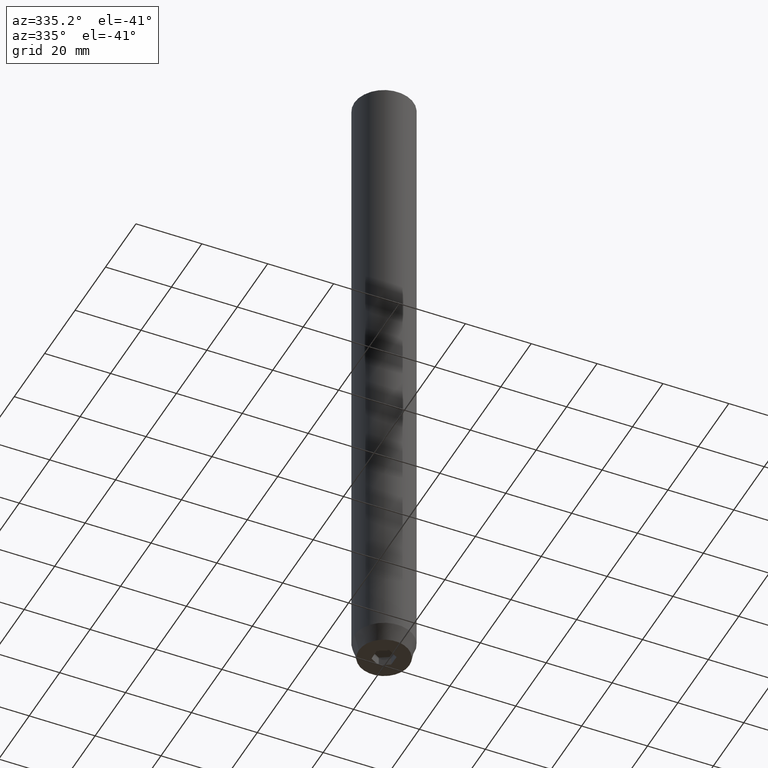
[diagram: clean part render]
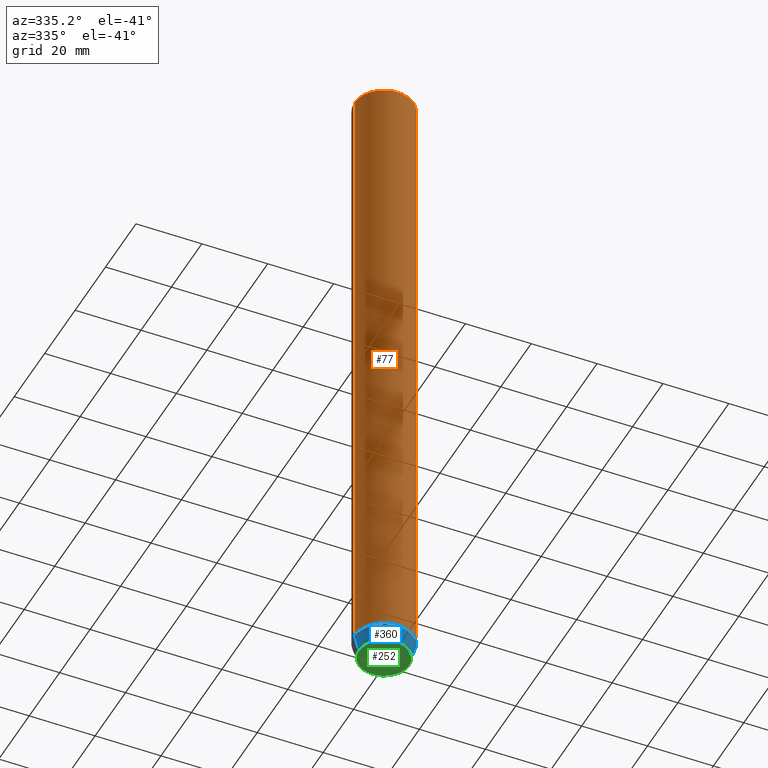
[diagram: same view with three faces highlighted in distinct colors, each labeled with its STEP entity id]
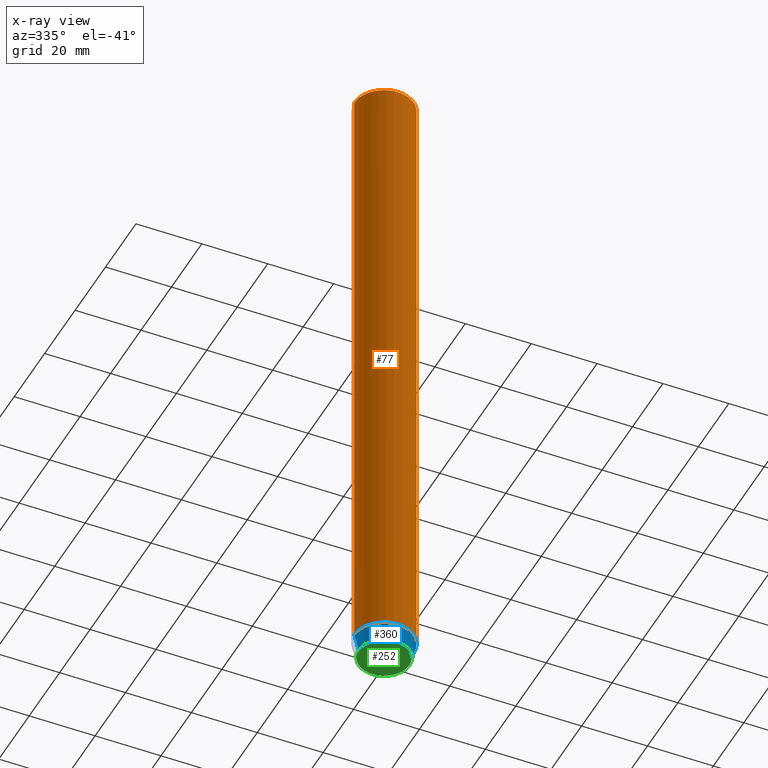
[diagram: x-ray of the same camera — body ghosted, the three highlighted faces saturated]
A machine part, auxiliary view with three faces highlighted in distinct colors.
The next image is the same camera in x-ray (body ghosted, the three faces saturated) — at least one of them is partly hidden behind the body in this view.
Their STEP definitions:

[orange] entity #77 — the highlighted cylindrical surface (edge-blend (fillet) strip) has radius 9 mm, axis along (-0, -0, 1).
#44 = LINE ( 'NONE', #364, #105 ) ;
#77 = ADVANCED_FACE ( 'NONE', ( #326 ), #200, .T. ) ;
#105 = VECTOR ( 'NONE', #548, 1000.000000000000000 ) ;
#118 = AXIS2_PLACEMENT_3D ( 'NONE', #359, #540, #405 ) ;
#123 = DIRECTION ( 'NONE',  ( 1.000000000000000000, 0.000000000000000000, 0.000000000000000000 ) ) ;
#142 = LINE ( 'NONE', #464, #484 ) ;
#143 = ORIENTED_EDGE ( 'NONE', *, *, #344, .T. ) ;
#160 = CARTESIAN_POINT ( 'NONE',  ( -9.000000000000000000, 1.102182119232617714E-15, -195.0000000000000000 ) ) ;
#184 = ORIENTED_EDGE ( 'NONE', *, *, #377, .T. ) ;
#200 = CYLINDRICAL_SURFACE ( 'NONE', #584, 9.000000000000000000 ) ;
#236 = VERTEX_POINT ( 'NONE', #160 ) ;
#239 = DIRECTION ( 'NONE',  ( -0.000000000000000000, -0.000000000000000000, 1.000000000000000000 ) ) ;
#250 = ORIENTED_EDGE ( 'NONE', *, *, #408, .T. ) ;
#272 = CARTESIAN_POINT ( 'NONE',  ( -9.000000000000000000, 1.102182119232617714E-15, -0.4999999999999952260 ) ) ;
#318 = ORIENTED_EDGE ( 'NONE', *, *, #533, .F. ) ;
#326 = FACE_OUTER_BOUND ( 'NONE', #531, .T. ) ;
#344 = EDGE_CURVE ( 'NONE', #236, #575, #542, .T. ) ;
#359 = CARTESIAN_POINT ( 'NONE',  ( 0.000000000000000000, 0.000000000000000000, -0.4999999999999952260 ) ) ;
#364 = CARTESIAN_POINT ( 'NONE',  ( 9.000000000000000000, 0.000000000000000000, 0.000000000000000000 ) ) ;
#374 = CARTESIAN_POINT ( 'NONE',  ( 9.000000000000000000, 0.000000000000000000, -195.0000000000000000 ) ) ;
#377 = EDGE_CURVE ( 'NONE', #384, #443, #438, .T. ) ;
#384 = VERTEX_POINT ( 'NONE', #451 ) ;
#387 = DIRECTION ( 'NONE',  ( -0.000000000000000000, -0.000000000000000000, 1.000000000000000000 ) ) ;
#405 = DIRECTION ( 'NONE',  ( 1.000000000000000000, 0.000000000000000000, 0.000000000000000000 ) ) ;
#408 = EDGE_CURVE ( 'NONE', #575, #384, #44, .T. ) ;
#420 = DIRECTION ( 'NONE',  ( 1.000000000000000000, 0.000000000000000000, 0.000000000000000000 ) ) ;
#438 = CIRCLE ( 'NONE', #118, 9.000000000000000000 ) ;
#443 = VERTEX_POINT ( 'NONE', #272 ) ;
#451 = CARTESIAN_POINT ( 'NONE',  ( 9.000000000000000000, 0.000000000000000000, -0.4999999999999952260 ) ) ;
#453 = DIRECTION ( 'NONE',  ( -0.000000000000000000, -0.000000000000000000, 1.000000000000000000 ) ) ;
#464 = CARTESIAN_POINT ( 'NONE',  ( -9.000000000000000000, 1.102182119232617714E-15, 0.000000000000000000 ) ) ;
#484 = VECTOR ( 'NONE', #453, 1000.000000000000000 ) ;
#512 = CARTESIAN_POINT ( 'NONE',  ( 0.000000000000000000, 0.000000000000000000, 0.000000000000000000 ) ) ;
#529 = CARTESIAN_POINT ( 'NONE',  ( 0.000000000000000000, 0.000000000000000000, -195.0000000000000000 ) ) ;
#531 = EDGE_LOOP ( 'NONE', ( #318, #143, #250, #184 ) ) ;
#533 = EDGE_CURVE ( 'NONE', #236, #443, #142, .T. ) ;
#540 = DIRECTION ( 'NONE',  ( 0.000000000000000000, 0.000000000000000000, -1.000000000000000000 ) ) ;
#542 = CIRCLE ( 'NONE', #551, 9.000000000000000000 ) ;
#548 = DIRECTION ( 'NONE',  ( -0.000000000000000000, -0.000000000000000000, 1.000000000000000000 ) ) ;
#551 = AXIS2_PLACEMENT_3D ( 'NONE', #529, #387, #123 ) ;
#575 = VERTEX_POINT ( 'NONE', #374 ) ;
#584 = AXIS2_PLACEMENT_3D ( 'NONE', #512, #239, #420 ) ;

[blue] entity #360 — the highlighted conical surface has half-angle 15 deg.
#7 = EDGE_CURVE ( 'NONE', #191, #236, #287, .T. ) ;
#8 = DIRECTION ( 'NONE',  ( 1.000000000000000000, 0.000000000000000000, 0.000000000000000000 ) ) ;
#19 = ORIENTED_EDGE ( 'NONE', *, *, #7, .F. ) ;
#30 = VERTEX_POINT ( 'NONE', #158 ) ;
#100 = DIRECTION ( 'NONE',  ( -0.000000000000000000, -0.000000000000000000, 1.000000000000000000 ) ) ;
#112 = ORIENTED_EDGE ( 'NONE', *, *, #481, .T. ) ;
#123 = DIRECTION ( 'NONE',  ( 1.000000000000000000, 0.000000000000000000, 0.000000000000000000 ) ) ;
#158 = CARTESIAN_POINT ( 'NONE',  ( 7.660254037844380193, 0.000000000000000000, -200.0000000000000000 ) ) ;
#160 = CARTESIAN_POINT ( 'NONE',  ( -9.000000000000000000, 1.102182119232617714E-15, -195.0000000000000000 ) ) ;
#191 = VERTEX_POINT ( 'NONE', #573 ) ;
#215 = AXIS2_PLACEMENT_3D ( 'NONE', #404, #496, #8 ) ;
#220 = ORIENTED_EDGE ( 'NONE', *, *, #344, .F. ) ;
#236 = VERTEX_POINT ( 'NONE', #160 ) ;
#237 = CARTESIAN_POINT ( 'NONE',  ( 0.000000000000000000, 0.000000000000000000, -200.0000000000000000 ) ) ;
#287 = LINE ( 'NONE', #566, #388 ) ;
#309 = FACE_OUTER_BOUND ( 'NONE', #511, .T. ) ;
#316 = LINE ( 'NONE', #495, #390 ) ;
#344 = EDGE_CURVE ( 'NONE', #236, #575, #542, .T. ) ;
#360 = ADVANCED_FACE ( 'NONE', ( #309 ), #474, .T. ) ;
#374 = CARTESIAN_POINT ( 'NONE',  ( 9.000000000000000000, 0.000000000000000000, -195.0000000000000000 ) ) ;
#387 = DIRECTION ( 'NONE',  ( -0.000000000000000000, -0.000000000000000000, 1.000000000000000000 ) ) ;
#388 = VECTOR ( 'NONE', #521, 1000.000000000000114 ) ;
#390 = VECTOR ( 'NONE', #500, 1000.000000000000114 ) ;
#404 = CARTESIAN_POINT ( 'NONE',  ( 0.000000000000000000, 0.000000000000000000, -195.0000000000000000 ) ) ;
#426 = CIRCLE ( 'NONE', #459, 7.660254037844380193 ) ;
#459 = AXIS2_PLACEMENT_3D ( 'NONE', #237, #100, #508 ) ;
#474 = CONICAL_SURFACE ( 'NONE', #215, 9.000000000000000000, 0.2617993877991502405 ) ;
#481 = EDGE_CURVE ( 'NONE', #30, #575, #316, .T. ) ;
#495 = CARTESIAN_POINT ( 'NONE',  ( 9.000000000000000000, 0.000000000000000000, -195.0000000000000000 ) ) ;
#496 = DIRECTION ( 'NONE',  ( -0.000000000000000000, -0.000000000000000000, 1.000000000000000000 ) ) ;
#500 = DIRECTION ( 'NONE',  ( 0.2588190451025214611, 0.000000000000000000, 0.9659258262890679791 ) ) ;
#508 = DIRECTION ( 'NONE',  ( 1.000000000000000000, 0.000000000000000000, 0.000000000000000000 ) ) ;
#511 = EDGE_LOOP ( 'NONE', ( #19, #557, #112, #220 ) ) ;
#521 = DIRECTION ( 'NONE',  ( -0.2588190451025214611, 3.169619151431774186E-17, 0.9659258262890679791 ) ) ;
#529 = CARTESIAN_POINT ( 'NONE',  ( 0.000000000000000000, 0.000000000000000000, -195.0000000000000000 ) ) ;
#530 = EDGE_CURVE ( 'NONE', #191, #30, #426, .T. ) ;
#542 = CIRCLE ( 'NONE', #551, 9.000000000000000000 ) ;
#551 = AXIS2_PLACEMENT_3D ( 'NONE', #529, #387, #123 ) ;
#557 = ORIENTED_EDGE ( 'NONE', *, *, #530, .T. ) ;
#566 = CARTESIAN_POINT ( 'NONE',  ( -9.000000000000000000, 1.102182119232617714E-15, -195.0000000000000000 ) ) ;
#573 = CARTESIAN_POINT ( 'NONE',  ( -7.660254037844380193, 1.020146339021394272E-15, -200.0000000000000000 ) ) ;
#575 = VERTEX_POINT ( 'NONE', #374 ) ;

[green] entity #252 — the highlighted planar face has unit normal (0, 0, -1).
#12 = AXIS2_PLACEMENT_3D ( 'NONE', #21, #372, #68 ) ;
#14 = DIRECTION ( 'NONE',  ( 0.8660254037844385966, -0.5000000000000001110, 0.000000000000000000 ) ) ;
#16 = CARTESIAN_POINT ( 'NONE',  ( 1.500000000000000222, 2.598076211353315568, -200.0000000000000000 ) ) ;
#21 = CARTESIAN_POINT ( 'NONE',  ( 0.000000000000000000, 0.000000000000000000, -200.0000000000000000 ) ) ;
#27 = EDGE_CURVE ( 'NONE', #505, #65, #290, .T. ) ;
#30 = VERTEX_POINT ( 'NONE', #158 ) ;
#35 = LINE ( 'NONE', #353, #483 ) ;
#59 = DIRECTION ( 'NONE',  ( 0.000000000000000000, -1.000000000000000000, 0.000000000000000000 ) ) ;
#65 = VERTEX_POINT ( 'NONE', #383 ) ;
#68 = DIRECTION ( 'NONE',  ( 1.000000000000000000, 0.000000000000000000, 0.000000000000000000 ) ) ;
#71 = VECTOR ( 'NONE', #249, 1000.000000000000000 ) ;
#73 = EDGE_LOOP ( 'NONE', ( #226, #312, #361, #322, #91, #76 ) ) ;
#75 = CARTESIAN_POINT ( 'NONE',  ( -1.499999999999999556, 2.598076211353316012, -200.0000000000000000 ) ) ;
#76 = ORIENTED_EDGE ( 'NONE', *, *, #586, .F. ) ;
#85 = FACE_OUTER_BOUND ( 'NONE', #561, .T. ) ;
#86 = EDGE_CURVE ( 'NONE', #30, #191, #131, .T. ) ;
#91 = ORIENTED_EDGE ( 'NONE', *, *, #27, .F. ) ;
#100 = DIRECTION ( 'NONE',  ( -0.000000000000000000, -0.000000000000000000, 1.000000000000000000 ) ) ;
#111 = DIRECTION ( 'NONE',  ( -2.503857664561932376E-16, 1.000000000000000000, 0.000000000000000000 ) ) ;
#131 = CIRCLE ( 'NONE', #12, 7.660254037844380193 ) ;
#140 = LINE ( 'NONE', #16, #178 ) ;
#158 = CARTESIAN_POINT ( 'NONE',  ( 7.660254037844380193, 0.000000000000000000, -200.0000000000000000 ) ) ;
#165 = LINE ( 'NONE', #299, #71 ) ;
#175 = CARTESIAN_POINT ( 'NONE',  ( -3.000000000000000000, -1.732050807568877859, -200.0000000000000000 ) ) ;
#178 = VECTOR ( 'NONE', #14, 1000.000000000000000 ) ;
#191 = VERTEX_POINT ( 'NONE', #573 ) ;
#205 = EDGE_CURVE ( 'NONE', #65, #570, #165, .T. ) ;
#207 = ORIENTED_EDGE ( 'NONE', *, *, #86, .F. ) ;
#216 = FACE_BOUND ( 'NONE', #73, .T. ) ;
#226 = ORIENTED_EDGE ( 'NONE', *, *, #306, .F. ) ;
#237 = CARTESIAN_POINT ( 'NONE',  ( 0.000000000000000000, 0.000000000000000000, -200.0000000000000000 ) ) ;
#249 = DIRECTION ( 'NONE',  ( -0.8660254037844385966, -0.5000000000000001110, 0.000000000000000000 ) ) ;
#251 = DIRECTION ( 'NONE',  ( -1.000000000000000000, 0.000000000000000000, -0.000000000000000000 ) ) ;
#252 = ADVANCED_FACE ( 'NONE', ( #216, #85 ), #258, .T. ) ;
#258 = PLANE ( 'NONE',  #458 ) ;
#271 = VECTOR ( 'NONE', #111, 1000.000000000000000 ) ;
#290 = LINE ( 'NONE', #475, #291 ) ;
#291 = VECTOR ( 'NONE', #59, 1000.000000000000000 ) ;
#299 = CARTESIAN_POINT ( 'NONE',  ( 1.500000000000000222, -2.598076211353315568, -200.0000000000000000 ) ) ;
#306 = EDGE_CURVE ( 'NONE', #375, #513, #436, .T. ) ;
#312 = ORIENTED_EDGE ( 'NONE', *, *, #567, .F. ) ;
#322 = ORIENTED_EDGE ( 'NONE', *, *, #205, .F. ) ;
#330 = CARTESIAN_POINT ( 'NONE',  ( 0.000000000000000000, 3.464101615137754386, -200.0000000000000000 ) ) ;
#334 = EDGE_CURVE ( 'NONE', #570, #479, #35, .T. ) ;
#339 = CARTESIAN_POINT ( 'NONE',  ( 0.000000000000000000, 7.660254037844380193, -200.0000000000000000 ) ) ;
#353 = CARTESIAN_POINT ( 'NONE',  ( -1.500000000000000666, -2.598076211353316456, -200.0000000000000000 ) ) ;
#361 = ORIENTED_EDGE ( 'NONE', *, *, #334, .F. ) ;
#362 = CARTESIAN_POINT ( 'NONE',  ( 3.000000000000000000, 1.732050807568876527, -200.0000000000000000 ) ) ;
#372 = DIRECTION ( 'NONE',  ( -0.000000000000000000, -0.000000000000000000, 1.000000000000000000 ) ) ;
#375 = VERTEX_POINT ( 'NONE', #445 ) ;
#383 = CARTESIAN_POINT ( 'NONE',  ( 3.000000000000000000, -1.732050807568876527, -200.0000000000000000 ) ) ;
#413 = CARTESIAN_POINT ( 'NONE',  ( -2.168404344971008868E-16, -3.464101615137754830, -200.0000000000000000 ) ) ;
#426 = CIRCLE ( 'NONE', #459, 7.660254037844380193 ) ;
#433 = DIRECTION ( 'NONE',  ( 0.000000000000000000, 0.000000000000000000, -1.000000000000000000 ) ) ;
#436 = LINE ( 'NONE', #75, #560 ) ;
#445 = CARTESIAN_POINT ( 'NONE',  ( -3.000000000000000888, 1.732050807568876527, -200.0000000000000000 ) ) ;
#458 = AXIS2_PLACEMENT_3D ( 'NONE', #339, #433, #251 ) ;
#459 = AXIS2_PLACEMENT_3D ( 'NONE', #237, #100, #508 ) ;
#470 = ORIENTED_EDGE ( 'NONE', *, *, #530, .F. ) ;
#475 = CARTESIAN_POINT ( 'NONE',  ( 3.000000000000000000, 0.000000000000000000, -200.0000000000000000 ) ) ;
#479 = VERTEX_POINT ( 'NONE', #175 ) ;
#483 = VECTOR ( 'NONE', #538, 1000.000000000000000 ) ;
#505 = VERTEX_POINT ( 'NONE', #362 ) ;
#508 = DIRECTION ( 'NONE',  ( 1.000000000000000000, 0.000000000000000000, 0.000000000000000000 ) ) ;
#513 = VERTEX_POINT ( 'NONE', #330 ) ;
#514 = LINE ( 'NONE', #518, #271 ) ;
#518 = CARTESIAN_POINT ( 'NONE',  ( -3.000000000000000444, -7.511572993685800087E-16, -200.0000000000000000 ) ) ;
#530 = EDGE_CURVE ( 'NONE', #191, #30, #426, .T. ) ;
#538 = DIRECTION ( 'NONE',  ( -0.8660254037844385966, 0.5000000000000001110, 0.000000000000000000 ) ) ;
#560 = VECTOR ( 'NONE', #578, 999.9999999999998863 ) ;
#561 = EDGE_LOOP ( 'NONE', ( #207, #470 ) ) ;
#567 = EDGE_CURVE ( 'NONE', #479, #375, #514, .T. ) ;
#570 = VERTEX_POINT ( 'NONE', #413 ) ;
#573 = CARTESIAN_POINT ( 'NONE',  ( -7.660254037844380193, 1.020146339021394272E-15, -200.0000000000000000 ) ) ;
#578 = DIRECTION ( 'NONE',  ( 0.8660254037844387076, 0.4999999999999999445, 0.000000000000000000 ) ) ;
#586 = EDGE_CURVE ( 'NONE', #513, #505, #140, .T. ) ;